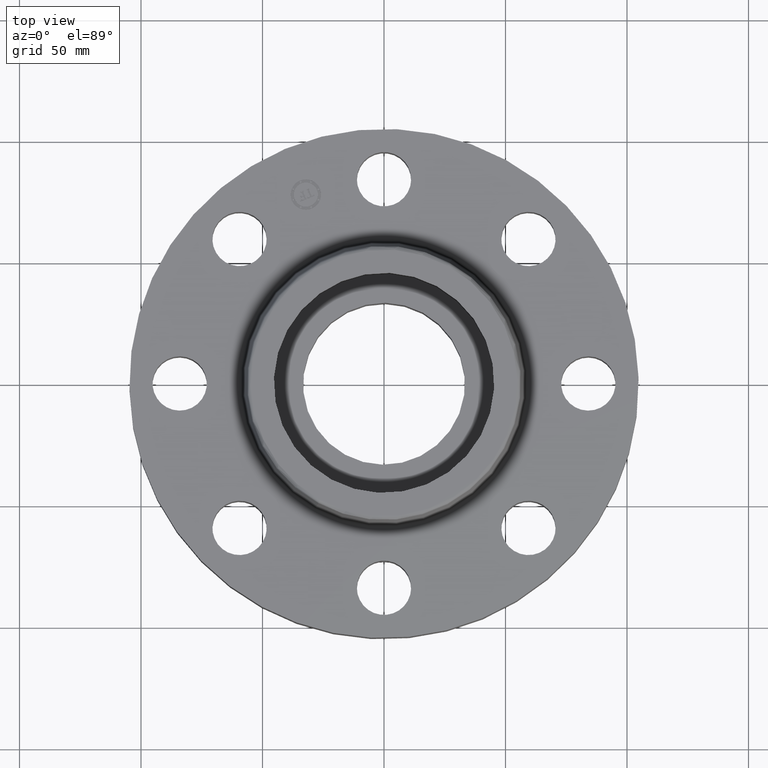
[diagram: clean part render]
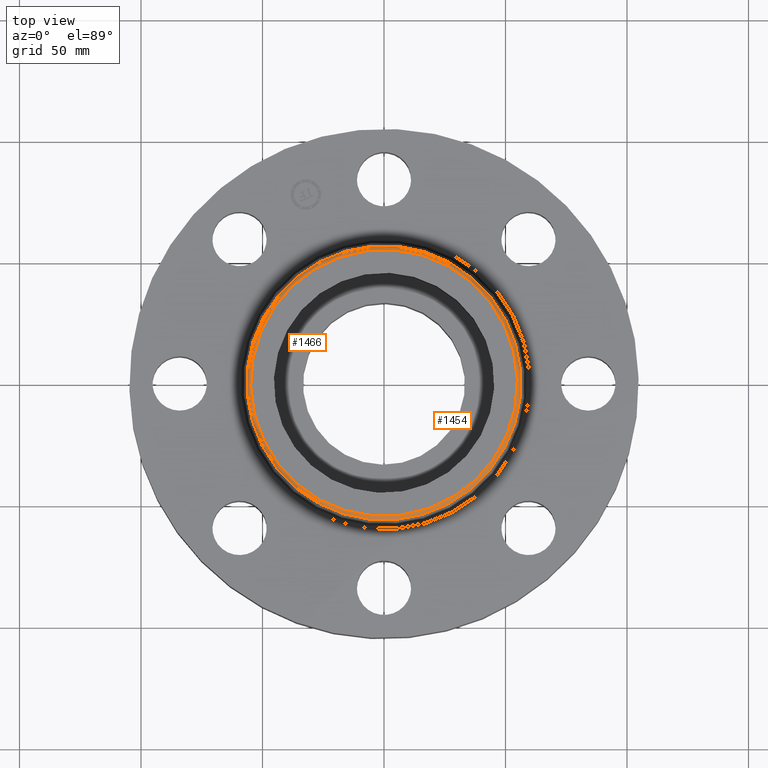
[diagram: same view with one multi-face feature highlighted, each face labeled with its STEP entity id]
A machine part, top view. The highlighted faces form ONE feature: a constant-radius fillet chain: 2 tangent blend faces with common blend radius 1.524 mm. The faces share edges in the B-rep.
Their STEP definitions:
[1] entity #1454 (Torus):
#1352=AXIS2_PLACEMENT_3D('Circle Axis2P3D',#1350,#1351,$) ;
#1427=AXIS2_PLACEMENT_3D('Torus Axis2P3D',#1424,#1425,#1426) ;
#1431=AXIS2_PLACEMENT_3D('Circle Axis2P3D',#1429,#1430,$) ;
#1438=AXIS2_PLACEMENT_3D('Circle Axis2P3D',#1436,#1437,$) ;
#1445=AXIS2_PLACEMENT_3D('Circle Axis2P3D',#1443,#1444,$) ;
#1347=CARTESIAN_POINT('Vertex',(1.06432439756,1.94823274165,1.76041889067)) ;
#1350=CARTESIAN_POINT('Axis2P3D Location',(0.,0.,1.76041889067)) ;
#1354=CARTESIAN_POINT('Vertex',(-1.06432439756,-1.94823274165,1.76041889067)) ;
#1424=CARTESIAN_POINT('Axis2P3D Location',(0.,0.,1.75000000001)) ;
#1429=CARTESIAN_POINT('Axis2P3D Location',(1.03599587831,1.896377735,1.75000000001)) ;
#1433=CARTESIAN_POINT('Vertex',(1.03599587831,1.896377735,1.81000000001)) ;
#1436=CARTESIAN_POINT('Axis2P3D Location',(0.,0.,1.81000000001)) ;
#1440=CARTESIAN_POINT('Vertex',(-1.03599587831,-1.896377735,1.81000000001)) ;
#1443=CARTESIAN_POINT('Axis2P3D Location',(-1.03599587831,-1.896377735,1.75000000001)) ;
#1351=DIRECTION('Axis2P3D Direction',(0.,0.,-0.0393700787402)) ;
#1425=DIRECTION('Axis2P3D Direction',(0.,0.,-0.0393700787402)) ;
#1426=DIRECTION('Axis2P3D XDirection',(-0.0188750212049,-0.0345504945626,0.)) ;
#1430=DIRECTION('Axis2P3D Direction',(-0.0345504945626,0.0188750212049,0.)) ;
#1437=DIRECTION('Axis2P3D Direction',(0.,0.,-0.0393700787402)) ;
#1444=DIRECTION('Axis2P3D Direction',(0.0345504945626,-0.0188750212049,0.)) ;
#1449=ORIENTED_EDGE('',*,*,#1356,.F.) ;
#1450=ORIENTED_EDGE('',*,*,#1435,.T.) ;
#1451=ORIENTED_EDGE('',*,*,#1442,.T.) ;
#1452=ORIENTED_EDGE('',*,*,#1447,.F.) ;
#1454=ADVANCED_FACE('PartBody',(#1453),#1428,.T.) ;
#1353=CIRCLE('generated circle',#1352,2.21999937812) ;
#1432=CIRCLE('generated circle',#1431,0.0600000000002) ;
#1439=CIRCLE('generated circle',#1438,2.16091091294) ;
#1446=CIRCLE('generated circle',#1445,0.0600000000002) ;
#1428=TOROIDAL_SURFACE('homeo Torus',#1427,2.16091091294,0.0600000000002) ;
#1356=EDGE_CURVE('',#1348,#1355,#1353,.T.) ;
#1435=EDGE_CURVE('',#1348,#1434,#1432,.F.) ;
#1442=EDGE_CURVE('',#1434,#1441,#1439,.T.) ;
#1447=EDGE_CURVE('',#1355,#1441,#1446,.F.) ;
#1448=EDGE_LOOP('',(#1449,#1450,#1451,#1452)) ;
#1453=FACE_OUTER_BOUND('',#1448,.T.) ;
#1348=VERTEX_POINT('',#1347) ;
#1355=VERTEX_POINT('',#1354) ;
#1434=VERTEX_POINT('',#1433) ;
#1441=VERTEX_POINT('',#1440) ;
[2] entity #1466 (Torus):
#1371=AXIS2_PLACEMENT_3D('Circle Axis2P3D',#1369,#1370,$) ;
#1427=AXIS2_PLACEMENT_3D('Torus Axis2P3D',#1424,#1425,#1426) ;
#1431=AXIS2_PLACEMENT_3D('Circle Axis2P3D',#1429,#1430,$) ;
#1445=AXIS2_PLACEMENT_3D('Circle Axis2P3D',#1443,#1444,$) ;
#1457=AXIS2_PLACEMENT_3D('Circle Axis2P3D',#1455,#1456,$) ;
#1347=CARTESIAN_POINT('Vertex',(1.06432439756,1.94823274165,1.76041889067)) ;
#1354=CARTESIAN_POINT('Vertex',(-1.06432439756,-1.94823274165,1.76041889067)) ;
#1369=CARTESIAN_POINT('Axis2P3D Location',(0.,0.,1.76041889067)) ;
#1424=CARTESIAN_POINT('Axis2P3D Location',(0.,0.,1.75000000001)) ;
#1429=CARTESIAN_POINT('Axis2P3D Location',(1.03599587831,1.896377735,1.75000000001)) ;
#1433=CARTESIAN_POINT('Vertex',(1.03599587831,1.896377735,1.81000000001)) ;
#1440=CARTESIAN_POINT('Vertex',(-1.03599587831,-1.896377735,1.81000000001)) ;
#1443=CARTESIAN_POINT('Axis2P3D Location',(-1.03599587831,-1.896377735,1.75000000001)) ;
#1455=CARTESIAN_POINT('Axis2P3D Location',(0.,0.,1.81000000001)) ;
#1370=DIRECTION('Axis2P3D Direction',(0.,0.,-0.0393700787402)) ;
#1425=DIRECTION('Axis2P3D Direction',(0.,0.,-0.0393700787402)) ;
#1426=DIRECTION('Axis2P3D XDirection',(-0.0188750212049,-0.0345504945626,0.)) ;
#1430=DIRECTION('Axis2P3D Direction',(-0.0345504945626,0.0188750212049,0.)) ;
#1444=DIRECTION('Axis2P3D Direction',(0.0345504945626,-0.0188750212049,0.)) ;
#1456=DIRECTION('Axis2P3D Direction',(0.,0.,-0.0393700787402)) ;
#1461=ORIENTED_EDGE('',*,*,#1373,.F.) ;
#1462=ORIENTED_EDGE('',*,*,#1447,.T.) ;
#1463=ORIENTED_EDGE('',*,*,#1459,.T.) ;
#1464=ORIENTED_EDGE('',*,*,#1435,.F.) ;
#1466=ADVANCED_FACE('PartBody',(#1465),#1428,.T.) ;
#1372=CIRCLE('generated circle',#1371,2.21999937812) ;
#1432=CIRCLE('generated circle',#1431,0.0600000000002) ;
#1446=CIRCLE('generated circle',#1445,0.0600000000002) ;
#1458=CIRCLE('generated circle',#1457,2.16091091294) ;
#1428=TOROIDAL_SURFACE('homeo Torus',#1427,2.16091091294,0.0600000000002) ;
#1373=EDGE_CURVE('',#1355,#1348,#1372,.T.) ;
#1435=EDGE_CURVE('',#1348,#1434,#1432,.F.) ;
#1447=EDGE_CURVE('',#1355,#1441,#1446,.F.) ;
#1459=EDGE_CURVE('',#1441,#1434,#1458,.T.) ;
#1460=EDGE_LOOP('',(#1461,#1462,#1463,#1464)) ;
#1465=FACE_OUTER_BOUND('',#1460,.T.) ;
#1348=VERTEX_POINT('',#1347) ;
#1355=VERTEX_POINT('',#1354) ;
#1434=VERTEX_POINT('',#1433) ;
#1441=VERTEX_POINT('',#1440) ;